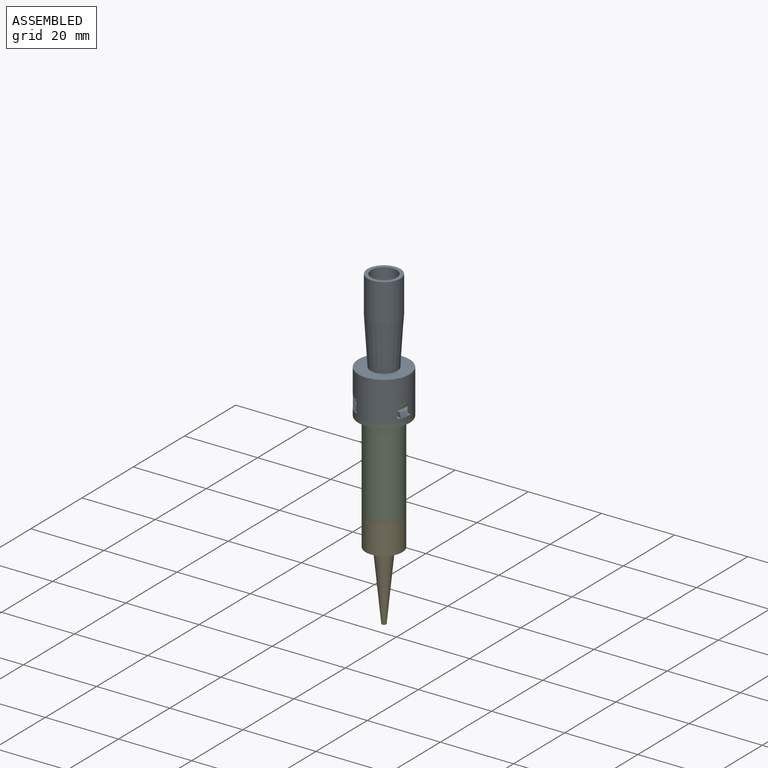
[diagram: assembled view]
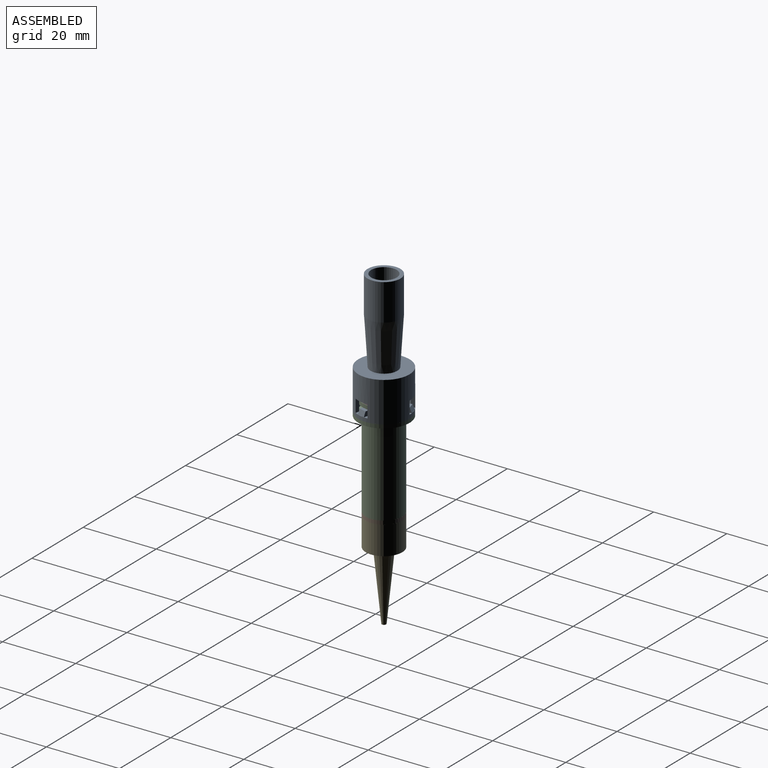
[diagram: assembled view, second angle]
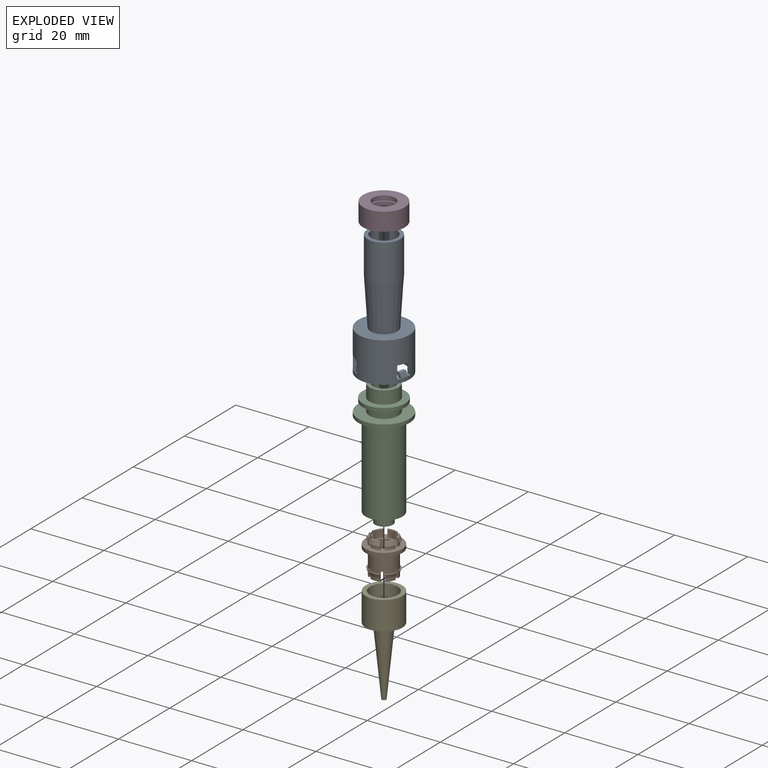
[diagram: exploded view]
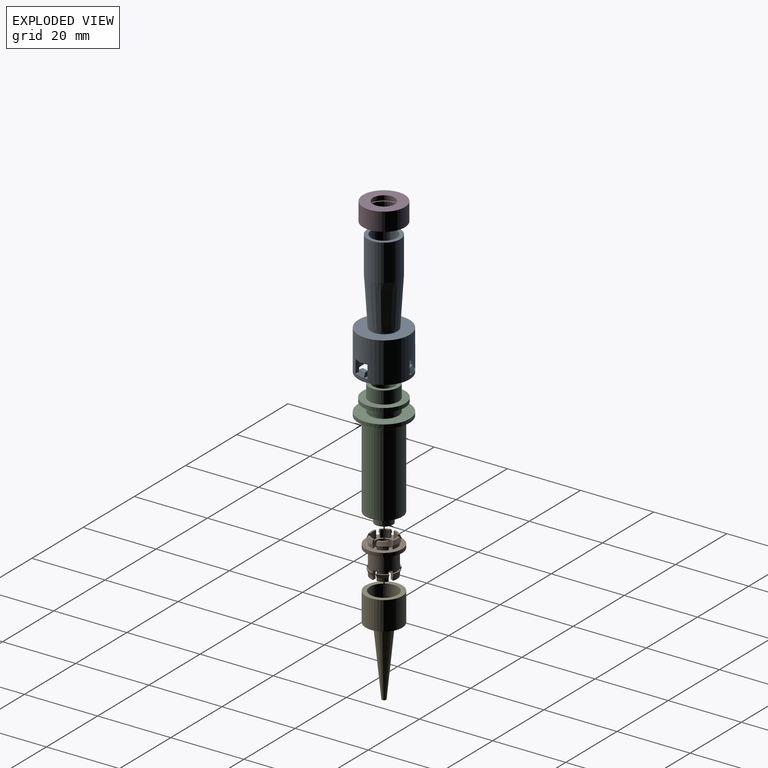
[diagram: exploded view, second angle]
ASSEMBLY  parts=5 mates=4
PART A: 45 faces, bbox 14x14x34 mm
  f0: cylinder r=7mm len=14mm, axis (0,0,-1), area 441.2mm2, adj f5,f6,f7,f8,f9,f14,f23,f29
  f1: plane 2.18x1.43mm, normal (0,0,1), area 1.9mm2, adj f2,f3,f16,f43
  f2: plane 1.5x1.48mm, normal (-0.23,-0.97,0), area 1.4mm2, adj f1,f4,f9,f16,f43
  f3: plane 1.5x1.48mm, normal (0.23,0.97,0), area 1.4mm2, adj f1,f4,f16,f31,f43
  f4: cylinder r=6mm len=12mm, axis (0,0,-1), area 295.3mm2, adj f2,f3,f5,f6,f7,f8,f9,f10
  f5: plane 1.5x1.19mm, normal (0,0,1), area 1mm2, adj f0,f4,f11,f38
  f6: plane 4.13x2.15mm, normal (0,0,-1), area 4.1mm2, adj f0,f4,f35,f38
  f7: plane 1.32x1.05mm, normal (0,0,1), area 1mm2, adj f0,f4,f13,f35
  f8: plane 1.6x1.26mm, normal (0,0,1), area 1mm2, adj f0,f4,f10,f33
  f9: plane 1.47x1.16mm, normal (0,0,1), area 1mm2, adj f0,f2,f4,f34
  f10: plane 1.5x1.11mm, normal (0.73,-0.69,0), area 1.4mm2, adj f4,f8,f17,f19,f41
  f11: plane 1.5x1.46mm, normal (-0.96,-0.29,0), area 1.4mm2, adj f4,f5,f15,f18,f39
  f12: plane 1.5x1.11mm, normal (-0.73,0.69,0), area 1.4mm2, adj f4,f17,f19,f32,f41
  f13: plane 1.5x1.46mm, normal (0.96,0.29,0), area 1.4mm2, adj f4,f7,f15,f18,f39
  f14: plane 14x14mm, normal (0,0,-1), area 40.8mm2, adj f0,f4
  f15: cone r=5.5mm half-angle=18.4deg, axis (0,0,-1), area 3.2mm2, adj f4,f11,f13,f18
  f16: cone r=5.5mm half-angle=18.4deg, axis (0,0,-1), area 3.2mm2, adj f1,f2,f3,f4
  f17: cone r=5.5mm half-angle=18.4deg, axis (0,0,-1), area 3.2mm2, adj f4,f10,f12,f19
  f18: plane 2.2x1.53mm, normal (0,0,1), area 1.9mm2, adj f11,f13,f15,f39
  f19: plane 2.14x2.1mm, normal (0,0,1), area 1.9mm2, adj f10,f12,f17,f41
  f20: plane 9x9mm, normal (0,0,1), area 25.1mm2, adj f21,f28
  f21: cylinder r=4.5mm len=10mm, axis (0,0,-1), area 282.7mm2, adj f20,f22
  f22: cone r=4.5mm half-angle=3.6deg, axis (0,0,1), area 334.7mm2, adj f21,f23
  f23: plane 14x14mm, normal (0,0,1), area 111.4mm2, adj f0,f22
  f24: plane 12x12mm, normal (0,0,-1), area 113mm2, adj f4,f25
  f25: cone r=0mm half-angle=3.8deg, axis (0,0,1), area 1.9mm2, adj f24
  f26: plane 5.36x5.36mm, normal (0,0,1), area 22.6mm2, adj f27
  f27: cone r=3.5mm half-angle=3.6deg, axis (0,0,1), area 252.9mm2, adj f26,f28
  f28: cylinder r=3.5mm len=10mm, axis (0,0,-1), area 219.9mm2, adj f20,f27
  f29: plane 4.13x1.96mm, normal (0,0,-1), area 4.1mm2, adj f0,f4,f34,f36
  f30: plane 3.63x3.51mm, normal (0,0,-1), area 4.1mm2, adj f0,f4,f33,f37
  f31: plane 1.27x1.03mm, normal (0,0,1), area 1mm2, adj f0,f3,f4,f36
  f32: plane 1.61x1.27mm, normal (0,0,1), area 1mm2, adj f0,f4,f12,f37
  f33: plane 3.5x0.76mm, normal (-0.73,0.69,0), area 3.7mm2, adj f0,f4,f8,f30
  f34: plane 3.5x1.02mm, normal (0.23,0.97,0), area 3.7mm2, adj f0,f4,f9,f29
  f35: plane 3.5x1.01mm, normal (-0.96,-0.29,0), area 3.7mm2, adj f0,f4,f6,f7
  f36: plane 3.5x1.02mm, normal (-0.23,-0.97,0), area 3.7mm2, adj f0,f4,f29,f31
  f37: plane 3.5x0.76mm, normal (0.73,-0.69,0), area 3.7mm2, adj f0,f4,f30,f32
  f38: plane 3.5x1.01mm, normal (0.96,0.29,0), area 3.7mm2, adj f0,f4,f5,f6
  f39: plane 2.07x1.3mm, normal (-0.27,0.89,0.37), area 2.8mm2, adj f11,f13,f18,f40
  f40: plane 1.92x0.57mm, normal (0,0,1), area 0.1mm2, adj f0,f39
  f41: plane 1.81x1.75mm, normal (-0.64,-0.68,0.37), area 2.8mm2, adj f10,f12,f19,f42
  f42: plane 1.45x1.37mm, normal (0,0,1), area 0.1mm2, adj f0,f41
  f43: plane 2.07x1.3mm, normal (0.9,-0.21,0.37), area 2.8mm2, adj f1,f2,f3,f44
  f44: plane 1.95x0.46mm, normal (0,0,1), area 0.1mm2, adj f0,f43
PART B: 99 faces, bbox 10x10x9.9 mm
  f0: cylinder r=3.6mm len=7.2mm, axis (0,0,-1), area 107.2mm2, adj f1,f2,f3,f4,f5,f57,f58,f81
  f1: plane 3.1x0.66mm, normal (0,0,1), area 1.2mm2, adj f0,f6,f95,f96
  f2: plane 2.69x1.75mm, normal (0,0,1), area 1.2mm2, adj f0,f7,f89,f91
  f3: plane 3.1x0.66mm, normal (0,0,1), area 1.2mm2, adj f0,f8,f86,f88
  f4: plane 2.69x1.75mm, normal (0,0,1), area 1.2mm2, adj f0,f9,f83,f85
  f5: plane 2.69x1.75mm, normal (0,0,1), area 1.2mm2, adj f0,f10,f92,f94
  f6: cone r=3.6mm half-angle=21.8deg, axis (0,0,1), area 3.2mm2, adj f1,f11,f95,f96
  f7: cone r=3.6mm half-angle=21.8deg, axis (0,0,1), area 3.2mm2, adj f2,f12,f89,f91
  f8: cone r=3.6mm half-angle=21.8deg, axis (0,0,1), area 3.2mm2, adj f3,f13,f86,f88
  f9: cone r=3.6mm half-angle=21.8deg, axis (0,0,1), area 3.2mm2, adj f4,f14,f83,f85
  f10: cone r=3.6mm half-angle=21.8deg, axis (0,0,1), area 3.2mm2, adj f5,f15,f92,f94
  f11: cylinder r=3.6mm len=2.7mm, axis (0,0,-1), area 2.5mm2, adj f6,f16,f95,f96
  f12: cylinder r=3.6mm len=2.34mm, axis (0,0,-1), area 2.5mm2, adj f7,f18,f89,f91
  f13: cylinder r=3.6mm len=2.7mm, axis (0,0,-1), area 2.5mm2, adj f8,f19,f86,f88
  f14: cylinder r=3.6mm len=2.34mm, axis (0,0,-1), area 2.5mm2, adj f9,f61,f83,f85
  f15: cylinder r=3.6mm len=2.34mm, axis (0,0,-1), area 2.5mm2, adj f10,f17,f92,f94
  f16: plane 2.7x1.14mm, normal (0,0,-1), area 2.2mm2, adj f11,f21,f95,f96
  f17: plane 2.34x1.86mm, normal (0,0,-1), area 2.2mm2, adj f15,f25,f92,f94
  f18: plane 2.34x1.86mm, normal (0,0,-1), area 2.2mm2, adj f12,f22,f89,f91
  f19: plane 2.7x1.14mm, normal (0,0,-1), area 2.2mm2, adj f13,f23,f86,f88
  f20: plane 2.34x1.86mm, normal (0,0,-1), area 2.2mm2, adj f60,f62,f82,f97
  f21: cylinder r=2.6mm len=2.4mm, axis (0,0,-1), area 4.1mm2, adj f16,f26,f95,f96
  f22: cylinder r=2.6mm len=2.4mm, axis (0,0,-1), area 4.1mm2, adj f18,f26,f89,f91
  f23: cylinder r=2.6mm len=2.4mm, axis (0,0,-1), area 4.1mm2, adj f19,f26,f86,f88
  f24: cylinder r=2.6mm len=2.4mm, axis (0,0,-1), area 4.1mm2, adj f26,f61,f83,f85
  f25: cylinder r=2.6mm len=2.4mm, axis (0,0,-1), area 4.1mm2, adj f17,f26,f92,f94
  f26: torus R=1.6mm, axis (0,0,-1), area 21.5mm2, adj f21,f22,f23,f24,f25,f62,f63,f81
  f27: plane 2.32x1.59mm, normal (0,0,1), area 1.2mm2, adj f32,f47,f70,f79
  f28: plane 2.68x0.69mm, normal (0,0,1), area 1.2mm2, adj f33,f48,f77,f80
  f29: plane 2.32x1.59mm, normal (0,0,1), area 1.2mm2, adj f34,f49,f75,f78
  f30: plane 2.68x0.69mm, normal (0,0,1), area 1.2mm2, adj f35,f50,f71,f74
  f31: plane 2.32x1.59mm, normal (0,0,1), area 1.2mm2, adj f36,f51,f69,f72
  f32: cone r=3.58mm half-angle=23.4deg, axis (0,0,-1), area 3.2mm2, adj f27,f37,f70,f79
  f33: cone r=3.58mm half-angle=23.4deg, axis (0,0,-1), area 3.2mm2, adj f28,f38,f77,f80
  f34: cone r=3.58mm half-angle=23.4deg, axis (0,0,-1), area 3.2mm2, adj f29,f39,f75,f78
  f35: cone r=3.58mm half-angle=23.4deg, axis (0,0,-1), area 3.2mm2, adj f30,f40,f71,f74
  f36: cone r=3.58mm half-angle=23.4deg, axis (0,0,-1), area 3.2mm2, adj f31,f41,f69,f72
  f37: plane 2.7x1.76mm, normal (0,0,-1), area 1.2mm2, adj f32,f42,f70,f79
  f38: plane 3.12x0.66mm, normal (0,0,-1), area 1.2mm2, adj f33,f43,f77,f80
  f39: plane 2.7x1.76mm, normal (0,0,-1), area 1.2mm2, adj f34,f44,f75,f78
  f40: plane 3.12x0.66mm, normal (0,0,-1), area 1.2mm2, adj f35,f45,f71,f74
  f41: plane 2.7x1.76mm, normal (0,0,-1), area 1.2mm2, adj f36,f46,f69,f72
  f42: cone r=3.61mm half-angle=1.9deg, axis (0,0,-1), area 3.1mm2, adj f37,f67,f70,f79
  f43: cone r=3.61mm half-angle=1.9deg, axis (0,0,-1), area 3.1mm2, adj f38,f67,f77,f80
  f44: cone r=3.61mm half-angle=1.9deg, axis (0,0,-1), area 3.1mm2, adj f39,f67,f75,f78
  f45: cone r=3.61mm half-angle=1.9deg, axis (0,0,-1), area 3.1mm2, adj f40,f67,f71,f74
  f46: cone r=3.61mm half-angle=1.9deg, axis (0,0,-1), area 3.1mm2, adj f41,f67,f69,f72
  f47: cylinder r=3.09mm len=2.1mm, axis (0,0,-1), area 4.7mm2, adj f27,f67,f70,f79
  f48: cylinder r=3.09mm len=2.18mm, axis (0,0,-1), area 4.7mm2, adj f28,f67,f77,f80
  f49: cylinder r=3.09mm len=2.1mm, axis (0,0,-1), area 4.7mm2, adj f29,f67,f75,f78
  f50: cylinder r=3.09mm len=2.18mm, axis (0,0,-1), area 4.7mm2, adj f30,f67,f71,f74
  f51: cylinder r=3.09mm len=2.1mm, axis (0,0,-1), area 4.7mm2, adj f31,f67,f69,f72
  f52: plane 2.32x1.59mm, normal (0,0,1), area 1.2mm2, adj f53,f68,f73,f76
  f53: cone r=3.58mm half-angle=23.4deg, axis (0,0,-1), area 3.2mm2, adj f52,f54,f73,f76
  f54: plane 2.7x1.76mm, normal (0,0,-1), area 1.2mm2, adj f53,f55,f73,f76
  f55: cone r=3.61mm half-angle=1.9deg, axis (0,0,-1), area 3.1mm2, adj f54,f67,f73,f76
  f56: cylinder r=5mm len=10mm, axis (0,0,-1), area 31.4mm2, adj f57,f67
  f57: plane 10x10mm, normal (0,0,-1), area 37.8mm2, adj f0,f56
  f58: plane 2.69x1.75mm, normal (0,0,1), area 1.2mm2, adj f0,f59,f82,f97
  f59: cone r=3.6mm half-angle=21.8deg, axis (0,0,1), area 3.2mm2, adj f58,f60,f82,f97
  f60: cylinder r=3.6mm len=2.34mm, axis (0,0,-1), area 2.5mm2, adj f20,f59,f82,f97
  f61: plane 2.34x1.86mm, normal (0,0,-1), area 2.2mm2, adj f14,f24,f83,f85
  f62: cylinder r=2.6mm len=2.4mm, axis (0,0,-1), area 4.1mm2, adj f20,f26,f82,f97
  f63: plane 3.2x3.2mm, normal (0,0,-1), area 4.2mm2, adj f26,f64
  f64: cylinder r=1.1mm len=2.2mm, axis (0,0,-1), area 6.9mm2, adj f63,f65
  f65: plane 5.2x5.2mm, normal (0,0,1), area 17.4mm2, adj f64,f66
  f66: cylinder r=2.6mm len=5.2mm, axis (0,0,-1), area 55.5mm2, adj f65,f67
  f67: plane 10x10mm, normal (0,0,1), area 48.8mm2, adj f42,f43,f44,f45,f46,f47,f48,f49
  f68: cylinder r=3.09mm len=2.1mm, axis (0,0,-1), area 4.7mm2, adj f52,f67,f73,f76
  f69: plane 2.1x0.94mm, normal (0,1,0), area 1.3mm2, adj f31,f36,f41,f46,f51,f67
  f70: plane 2.1x0.94mm, normal (0,-1,0), area 1.3mm2, adj f27,f32,f37,f42,f47,f67
  f71: plane 2.1x0.81mm, normal (0.87,0.5,0), area 1.3mm2, adj f30,f35,f40,f45,f50,f67
  f72: plane 2.1x0.81mm, normal (-0.87,-0.5,0), area 1.3mm2, adj f31,f36,f41,f46,f51,f67
  f73: plane 2.1x0.81mm, normal (0.87,-0.5,0), area 1.3mm2, adj f52,f53,f54,f55,f67,f68
  f74: plane 2.1x0.81mm, normal (-0.87,0.5,0), area 1.3mm2, adj f30,f35,f40,f45,f50,f67
  f75: plane 2.1x0.94mm, normal (0,-1,0), area 1.3mm2, adj f29,f34,f39,f44,f49,f67
  f76: plane 2.1x0.94mm, normal (0,1,0), area 1.3mm2, adj f52,f53,f54,f55,f67,f68
  f77: plane 2.1x0.81mm, normal (-0.87,-0.5,0), area 1.3mm2, adj f28,f33,f38,f43,f48,f67
  f78: plane 2.1x0.81mm, normal (0.87,0.5,0), area 1.3mm2, adj f29,f34,f39,f44,f49,f67
  f79: plane 2.1x0.81mm, normal (-0.87,0.5,0), area 1.3mm2, adj f27,f32,f37,f42,f47,f67
  f80: plane 2.1x0.81mm, normal (0.87,-0.5,0), area 1.3mm2, adj f28,f33,f38,f43,f48,f67
  f81: plane 1.05x1mm, normal (0,0,-1), area 1mm2, adj f0,f26,f82,f83
  f82: plane 2.5x1.43mm, normal (0,-1,0), area 2.7mm2, adj f0,f20,f26,f58,f59,f60,f62,f81
  f83: plane 2.5x1.43mm, normal (0,1,0), area 2.7mm2, adj f0,f4,f9,f14,f24,f26,f61,f81
  f84: plane 1.38x1.38mm, normal (0,0,-1), area 1mm2, adj f0,f26,f85,f86
  f85: plane 2.5x1.23mm, normal (0.87,-0.5,0), area 2.7mm2, adj f0,f4,f9,f14,f24,f26,f61,f84
  f86: plane 2.5x1.23mm, normal (-0.87,0.5,0), area 2.7mm2, adj f0,f3,f8,f13,f19,f23,f26,f84
  f87: plane 1.38x1.38mm, normal (0,0,-1), area 1mm2, adj f0,f26,f88,f89
  f88: plane 2.5x1.23mm, normal (0.87,0.5,0), area 2.7mm2, adj f0,f3,f8,f13,f19,f23,f26,f87
  f89: plane 2.5x1.23mm, normal (-0.87,-0.5,0), area 2.7mm2, adj f0,f2,f7,f12,f18,f22,f26,f87
  f90: plane 1.05x1mm, normal (0,0,-1), area 1mm2, adj f0,f26,f91,f92
  f91: plane 2.5x1.43mm, normal (0,1,0), area 2.7mm2, adj f0,f2,f7,f12,f18,f22,f26,f90
  f92: plane 2.5x1.43mm, normal (0,-1,0), area 2.7mm2, adj f0,f5,f10,f15,f17,f25,f26,f90
  f93: plane 1.38x1.38mm, normal (0,0,-1), area 1mm2, adj f0,f26,f94,f95
  f94: plane 2.5x1.23mm, normal (-0.87,0.5,0), area 2.7mm2, adj f0,f5,f10,f15,f17,f25,f26,f93
  f95: plane 2.5x1.23mm, normal (0.87,-0.5,0), area 2.7mm2, adj f0,f1,f6,f11,f16,f21,f26,f93
  f96: plane 2.5x1.23mm, normal (-0.87,-0.5,0), area 2.7mm2, adj f0,f1,f6,f11,f16,f21,f26,f98
  f97: plane 2.5x1.23mm, normal (0.87,0.5,0), area 2.7mm2, adj f0,f20,f26,f58,f59,f60,f62,f98
  f98: plane 1.38x1.38mm, normal (0,0,-1), area 1mm2, adj f0,f26,f96,f97
PART C: 19 faces, bbox 14x14x34.4 mm
  f0: plane 10x10mm, normal (0,0,-1), area 23.9mm2, adj f1,f18
  f1: cone r=4.17mm half-angle=23.4deg, axis (0,0,-1), area 27.1mm2, adj f0,f2
  f2: plane 8.29x8.29mm, normal (0,0,1), area 10mm2, adj f1,f3
  f3: cylinder r=4.14mm len=8.29mm, axis (0,0,-1), area 28.6mm2, adj f2,f4
  f4: plane 8.29x8.29mm, normal (0,0,-1), area 32.7mm2, adj f3,f5
  f5: cone r=2.6mm half-angle=2.2deg, axis (0,0,1), area 75.7mm2, adj f4,f6
  f6: plane 4.83x4.83mm, normal (0,0,-1), area 16.7mm2, adj f5,f7
  f7: cone r=0.72mm half-angle=10.1deg, axis (0,0,1), area 152.7mm2, adj f6,f8
  f8: cylinder r=3mm len=21.52mm, axis (0,0,-1), area 405.6mm2, adj f7,f9
  f9: plane 8x8mm, normal (0,0,1), area 22mm2, adj f8,f10
  f10: cylinder r=4mm len=8mm, axis (0,0,-1), area 88mm2, adj f9,f11
  f11: plane 11.6x11.6mm, normal (0,0,1), area 55.4mm2, adj f10,f12
  f12: cylinder r=5.8mm len=11.6mm, axis (0,0,-1), area 36.4mm2, adj f11,f13
  f13: plane 11.6x11.6mm, normal (0,0,-1), area 55.4mm2, adj f12,f14
  f14: cylinder r=4mm len=8mm, axis (0,0,-1), area 62.8mm2, adj f13,f15
  f15: plane 14x14mm, normal (0,0,1), area 103.7mm2, adj f14,f16
  f16: cylinder r=7mm len=14mm, axis (0,0,-1), area 44mm2, adj f15,f17
  f17: plane 14x14mm, normal (0,0,-1), area 75.4mm2, adj f16,f18
  f18: cylinder r=5mm len=23.7mm, axis (0,0,-1), area 744.6mm2, adj f0,f17
PART D: 10 faces, bbox 11.4x11.4x5 mm
  f0: cylinder r=4.5mm len=9mm, axis (0,0,-1), area 70.7mm2, adj f1,f8
  f1: plane 9x9mm, normal (0,0,-1), area 10.8mm2, adj f0,f2
  f2: cylinder r=4.1mm len=8.2mm, axis (0,0,-1), area 12.9mm2, adj f1,f3
  f3: plane 9x9mm, normal (0,0,1), area 10.8mm2, adj f2,f4
  f4: cylinder r=4.5mm len=9mm, axis (0,0,-1), area 28.3mm2, adj f3,f5
  f5: plane 9x9mm, normal (0,0,-1), area 35.3mm2, adj f4,f9
  f6: plane 11.4x11.4mm, normal (0,0,1), area 73.8mm2, adj f7,f9
  f7: cylinder r=5.7mm len=11.4mm, axis (0,0,-1), area 179.1mm2, adj f6,f8
  f8: plane 11.4x11.4mm, normal (0,0,-1), area 38.5mm2, adj f0,f7
  f9: cylinder r=3mm len=6mm, axis (0,0,1), area 18.8mm2, adj f5,f6
PART E: 10 faces, bbox 10x10x26.8 mm
  f0: cone r=2.5mm half-angle=5.7deg, axis (0,0,1), area 186mm2, adj f1,f9
  f1: plane 1.2x1.2mm, normal (0,0,-1), area 1.1mm2, adj f0
  f2: cone r=0.3mm half-angle=3.1deg, axis (0,0,-1), area 5.3mm2, adj f3
  f3: plane 8.6x8.6mm, normal (0,0,1), area 57.8mm2, adj f2,f4
  f4: cylinder r=4.3mm len=8.6mm, axis (0,0,-1), area 54mm2, adj f3,f5
  f5: plane 8.6x8.6mm, normal (0,0,-1), area 12.7mm2, adj f4,f6
  f6: cylinder r=3.8mm len=7.6mm, axis (0,0,-1), area 114.6mm2, adj f5,f7
  f7: plane 10x10mm, normal (0,0,1), area 33.2mm2, adj f6,f8
  f8: cylinder r=5mm len=10mm, axis (0,0,-1), area 245mm2, adj f7,f9
  f9: plane 10x10mm, normal (0,0,-1), area 58.9mm2, adj f0,f8
PLACE A t=(10.36,9.07,41.19)mm
PLACE B t=(10.36,9.07,65.02)mm
PLACE C t=(10.36,9.07,55.96)mm
PLACE D t=(10.36,9.07,50.46)mm
PLACE E t=(10.36,9.07,75.8)mm
MATE fastened C.f3 <-> B.f0  axis (0,0,-1) through (-1.76,9.07,40.2)mm
MATE fastened B.f0 <-> E.f4  axis (0,0,-1) through (-1.76,9.07,39.2)mm
MATE fastened A.f22 <-> C.f3  axis (0,0,-1) through (-1.76,9.07,64.9)mm
MATE fastened D.f9 <-> C.f3  axis (0,0,-1) through (-1.76,9.07,68.4)mm
